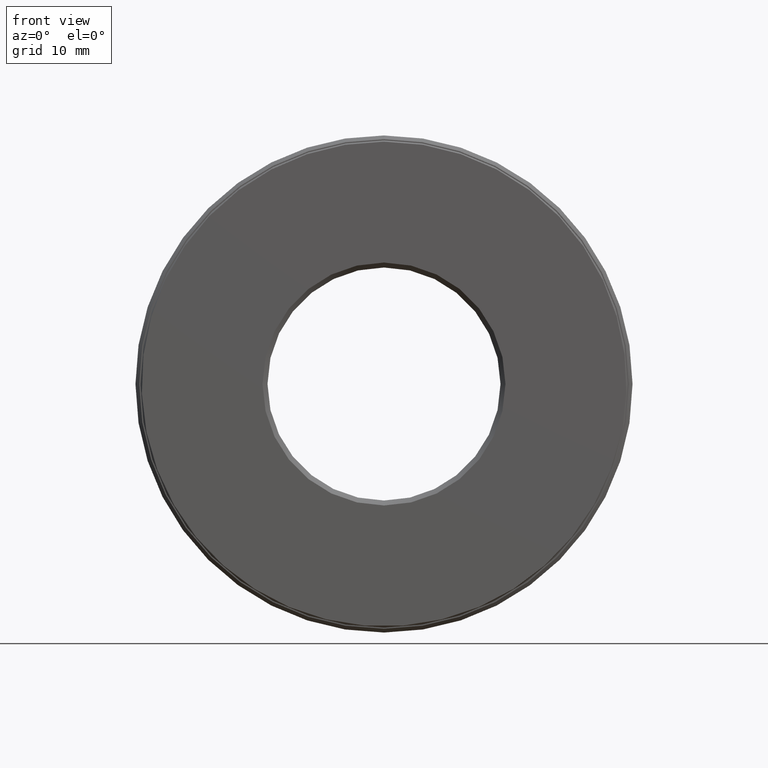
[diagram: clean part render]
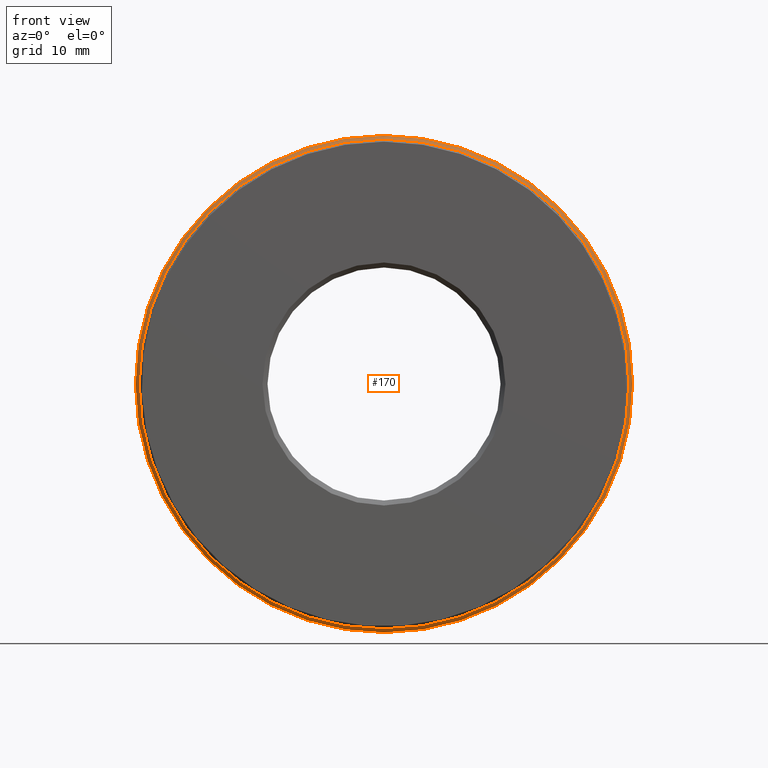
[diagram: same view with one face highlighted and labeled with its STEP entity id]
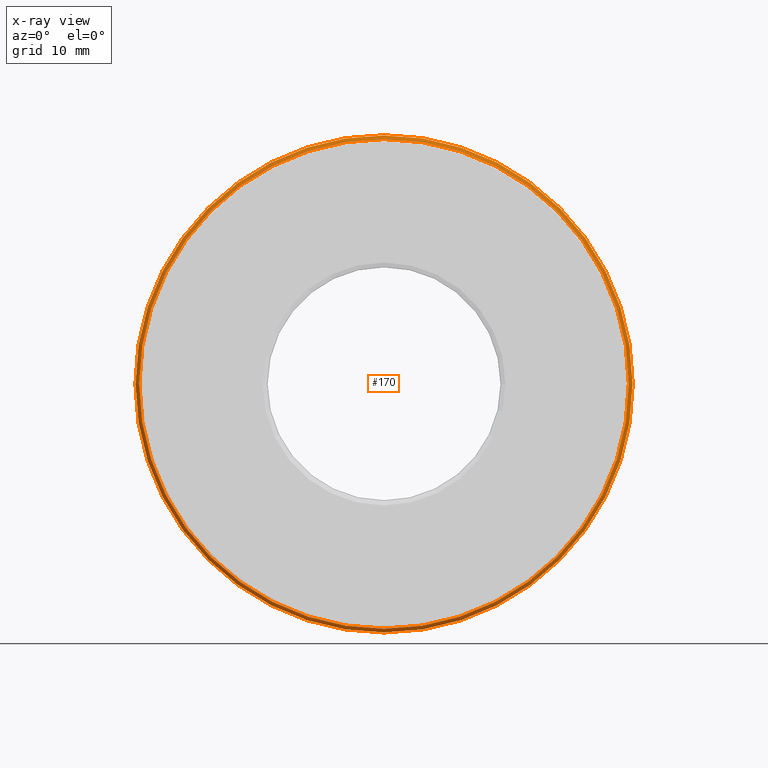
[diagram: x-ray of the same camera — body ghosted, the highlighted face saturated]
A machine part, front view. The second image highlights one B-rep face of the part: STEP entity #170.
The next image is the same camera in x-ray: the body ghosted, the highlighted face saturated — about 0% of this face is hidden behind the body in this view.
In plain terms, the highlighted conical surface has half-angle 45 deg.
Its self-contained STEP definition (entity closure, byte-faithful):
#6 = EDGE_CURVE ( 'NONE', #521, #521, #57, .T. ) ;
#26 = EDGE_CURVE ( 'NONE', #269, #269, #246, .T. ) ;
#41 = AXIS2_PLACEMENT_3D ( 'NONE', #71, #546, #229 ) ;
#50 = CARTESIAN_POINT ( 'NONE',  ( 0.0000000000000000000, 0.01499999999999997700, 0.0000000000000000000 ) ) ;
#57 = CIRCLE ( 'NONE', #103, 0.9999999999999998900 ) ;
#71 = CARTESIAN_POINT ( 'NONE',  ( 0.0000000000000000000, -6.616194359655631800E-017, 0.0000000000000000000 ) ) ;
#103 = AXIS2_PLACEMENT_3D ( 'NONE', #50, #158, #427 ) ;
#105 = EDGE_LOOP ( 'NONE', ( #600 ) ) ;
#158 = DIRECTION ( 'NONE',  ( -0.0000000000000000000, 1.000000000000000000, -0.0000000000000000000 ) ) ;
#170 = ADVANCED_FACE ( 'NONE', ( #444, #186 ), #206, .T. ) ;
#185 = ORIENTED_EDGE ( 'NONE', *, *, #26, .T. ) ;
#186 = FACE_BOUND ( 'NONE', #574, .T. ) ;
#206 = CONICAL_SURFACE ( 'NONE', #41, 0.9849999999999999900, 0.7853981633974415100 ) ;
#229 = DIRECTION ( 'NONE',  ( 0.0000000000000000000, 0.0000000000000000000, 1.000000000000000000 ) ) ;
#246 = CIRCLE ( 'NONE', #560, 0.9849999999999999900 ) ;
#269 = VERTEX_POINT ( 'NONE', #277 ) ;
#277 = CARTESIAN_POINT ( 'NONE',  ( 0.0000000000000000000, -6.616194359655631800E-017, 0.9849999999999999900 ) ) ;
#427 = DIRECTION ( 'NONE',  ( 0.0000000000000000000, 0.0000000000000000000, 1.000000000000000000 ) ) ;
#444 = FACE_OUTER_BOUND ( 'NONE', #105, .T. ) ;
#481 = CARTESIAN_POINT ( 'NONE',  ( 0.0000000000000000000, -6.616194359655631800E-017, 0.0000000000000000000 ) ) ;
#484 = DIRECTION ( 'NONE',  ( 0.0000000000000000000, 0.0000000000000000000, 1.000000000000000000 ) ) ;
#521 = VERTEX_POINT ( 'NONE', #544 ) ;
#527 = DIRECTION ( 'NONE',  ( -0.0000000000000000000, 1.000000000000000000, -0.0000000000000000000 ) ) ;
#544 = CARTESIAN_POINT ( 'NONE',  ( 0.0000000000000000000, 0.01499999999999997700, 0.9999999999999998900 ) ) ;
#546 = DIRECTION ( 'NONE',  ( -0.0000000000000000000, 1.000000000000000000, -0.0000000000000000000 ) ) ;
#560 = AXIS2_PLACEMENT_3D ( 'NONE', #481, #527, #484 ) ;
#574 = EDGE_LOOP ( 'NONE', ( #185 ) ) ;
#600 = ORIENTED_EDGE ( 'NONE', *, *, #6, .F. ) ;